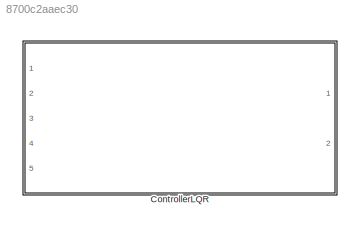
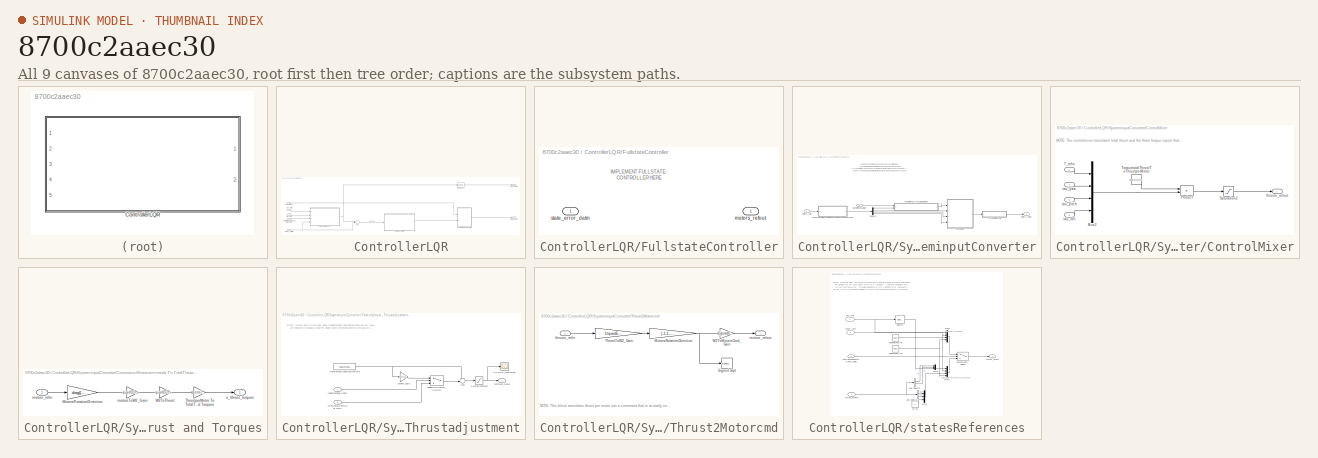
[diagram: thumbnail index - all 9 canvases of the model, root first then tree order]
MODEL slx_8700c2aaec30
KIND model
CONFIG AbsTol = auto
CONFIG FixedStep = sampleTime_qcsim
CONFIG InitFcn = % load parameters of the default quadrotor\ndisp('Quadrotor parameters loaded by InitFcn')\nparamsControl %load mdl_quadcopter as well!
CONFIG MaxStep = 0.1
CONFIG MinStep = auto
CONFIG RelTol = 1e-3
CONFIG SampleTimeConstraint = Unconstrained
CONFIG Solver = ode3
CONFIG SolverMode = Auto
CONFIG SolverName = ode3
CONFIG StartTime = 0
CONFIG StopTime = inf
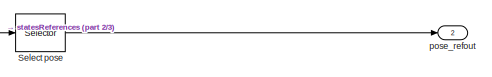
[diagram: ControllerLQR - part 1/3, top right region]
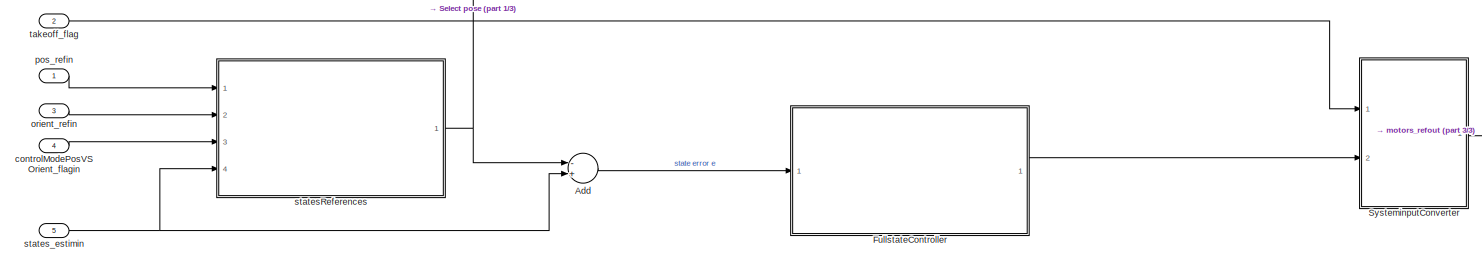
[diagram: ControllerLQR - part 2/3, full width, bottom band]
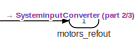
[diagram: ControllerLQR - part 3/3, bottom right region]
BLOCK [SubSystem] ControllerLQR
  Ports = [5, 2]
  RTWSystemCode = Reusable function
  RequestExecContextInheritance = off
  TreatAsAtomicUnit = on
BLOCK [Sum] ControllerLQR/Add
  InputSameDT = off
  Inputs = -+
  OutDataTypeStr = Inherit: Inherit via internal rule
  Ports = [2, 1]
  SaturateOnIntegerOverflow = off
BLOCK [SubSystem] ControllerLQR/FullstateController
  Ports = [1, 1]
  RequestExecContextInheritance = off
BLOCK [Outport] ControllerLQR/FullstateController/motors_refout
  IconDisplay = Port number
BLOCK [Inport] ControllerLQR/FullstateController/state_error_datin
  IconDisplay = Port number
BLOCK [Selector] ControllerLQR/Select pose
  Indices = [1:6]
  InputPortWidth = 12
  Ports = [1, 1]
BLOCK [SubSystem] ControllerLQR/SysteminputConverter
  Ports = [2, 1]
  RequestExecContextInheritance = off
BLOCK [SubSystem] ControllerLQR/SysteminputConverter/ControlMixer
  Ports = [4, 1]
  RequestExecContextInheritance = off
BLOCK [Mux] ControllerLQR/SysteminputConverter/ControlMixer/Mux2
  DisplayOption = bar
  Ports = [4, 1]
BLOCK [Product] ControllerLQR/SysteminputConverter/ControlMixer/Product
  InputSameDT = off
  Multiplication = Matrix(*)
  OutDataTypeStr = Inherit: Inherit via internal rule
  Ports = [2, 1]
  SaturateOnIntegerOverflow = off
BLOCK [Saturate] ControllerLQR/SysteminputConverter/ControlMixer/Saturation2
  InputPortMap = u0
  LowerLimit = -controlHelperParams.motorsThrustperMotor_max
  Ports = [1, 1]
  UpperLimit = -0.05*controlHelperParams.motorsThrustperMotor_max
BLOCK [Inport] ControllerLQR/SysteminputConverter/ControlMixer/T_refin
  IconDisplay = Port number
BLOCK [Constant] ControllerLQR/SysteminputConverter/ControlMixer/TorquetotalThrustToThrustperMotor
  Value = controlHelperParams.Q2Ts
BLOCK [Inport] ControllerLQR/SysteminputConverter/ControlMixer/tau_pitch
  IconDisplay = Port number
  Port = 3
BLOCK [Inport] ControllerLQR/SysteminputConverter/ControlMixer/tau_roll
  IconDisplay = Port number
  Port = 4
BLOCK [Inport] ControllerLQR/SysteminputConverter/ControlMixer/tau_yaw
  IconDisplay = Port number
  Port = 2
BLOCK [Outport] ControllerLQR/SysteminputConverter/ControlMixer/thrusts_refout
  IconDisplay = Port number
BLOCK [SubSystem] ControllerLQR/SysteminputConverter/Conversion Motorcommands To TotalThrust and Torques
  Ports = [1, 1]
  RequestExecContextInheritance = off
BLOCK [Gain] ControllerLQR/SysteminputConverter/Conversion Motorcommands To TotalThrust and Torques/MotorsRotationDirection
  Gain = diag([-1,1,-1,1])
  Multiplication = Matrix(K*u)
  OutDataTypeStr = Inherit: Inherit via internal rule
  ParamDataTypeStr = Inherit: Inherit via internal rule
  SaturateOnIntegerOverflow = off
BLOCK [Gain] ControllerLQR/SysteminputConverter/Conversion Motorcommands To TotalThrust and Torques/ThrustperMotor To TotalThrust and Torques
  Gain = controlHelperParams.Ts2Q
  Multiplication = Matrix(K*u)
  OutDataTypeStr = Inherit: Inherit via internal rule
  ParamDataTypeStr = Inherit: Inherit via internal rule
  SaturateOnIntegerOverflow = off
BLOCK [Gain] ControllerLQR/SysteminputConverter/Conversion Motorcommands To TotalThrust and Torques/W2ToThrust
  Gain = quadEDT.w2ToThrust_gain
  OutDataTypeStr = Inherit: Inherit via internal rule
  ParamDataTypeStr = Inherit: Inherit via internal rule
  SaturateOnIntegerOverflow = off
BLOCK [Gain] ControllerLQR/SysteminputConverter/Conversion Motorcommands To TotalThrust and Torques/motorsToW2_Gain
  Gain = quadEDT.motorcommandToW2_gain
  OutDataTypeStr = Inherit: Inherit via internal rule
  ParamDataTypeStr = Inherit: Inherit via internal rule
  SaturateOnIntegerOverflow = off
BLOCK [Inport] ControllerLQR/SysteminputConverter/Conversion Motorcommands To TotalThrust and Torques/motors_refin
  IconDisplay = Port number
BLOCK [Outport] ControllerLQR/SysteminputConverter/Conversion Motorcommands To TotalThrust and Torques/u_tthrust_torques
  IconDisplay = Port number
BLOCK [Demux] ControllerLQR/SysteminputConverter/Demux3
  DisplayOption = bar
  Ports = [1, 4]
BLOCK [SubSystem] ControllerLQR/SysteminputConverter/Takeoffphase_Thrustadjustment
  Ports = [2, 1]
  RequestExecContextInheritance = off
BLOCK [Sum] ControllerLQR/SysteminputConverter/Takeoffphase_Thrustadjustment/Add1
  IconShape = round
  InputSameDT = off
  Inputs = ++|
  OutDataTypeStr = Inherit: Inherit via internal rule
  Ports = [2, 1]
  SaturateOnIntegerOverflow = off
BLOCK [Constant] ControllerLQR/SysteminputConverter/Takeoffphase_Thrustadjustment/HoverThrustLinearizationPoint
  Value = -quad.g*quad.M
BLOCK [Scope] ControllerLQR/SysteminputConverter/Takeoffphase_Thrustadjustment/SCOPE_totalthrust 
  Floating = off
  NumInputPorts = 1
  Ports = [1]
  ZoomMode = yonly
BLOCK [Saturate] ControllerLQR/SysteminputConverter/Takeoffphase_Thrustadjustment/SaturationThrust
  InputPortMap = u0
  LowerLimit = -controlHelperParams.totalThrust_maxRelative*controlHelperParams.motorsThrustperMotor_max*4
  Ports = [1, 1]
  UpperLimit = controlHelperParams.totalThrust_maxRelative*controlHelperParams.motorsThrustperMotor_max*4
BLOCK [Switch] ControllerLQR/SysteminputConverter/Takeoffphase_Thrustadjustment/TakeoffOrControl_Switch
  Criteria = u2 > Threshold
  InputSameDT = off
  SaturateOnIntegerOverflow = off
BLOCK [Gain] ControllerLQR/SysteminputConverter/Takeoffphase_Thrustadjustment/takeoff_gain
  Gain = controlHelperParams.takeoff_gain
  OutDataTypeStr = Inherit: Inherit via internal rule
  ParamDataTypeStr = Inherit: Inherit via internal rule
  SaturateOnIntegerOverflow = off
BLOCK [Inport] ControllerLQR/SysteminputConverter/Takeoffphase_Thrustadjustment/takeoffphase_flagin
  IconDisplay = Port number
BLOCK [Outport] ControllerLQR/SysteminputConverter/Takeoffphase_Thrustadjustment/totThrust_refout
  IconDisplay = Port number
BLOCK [Inport] ControllerLQR/SysteminputConverter/Takeoffphase_Thrustadjustment/totThrustbyController_refin
  IconDisplay = Port number
  Port = 2
BLOCK [SubSystem] ControllerLQR/SysteminputConverter/Thrust2Motorcmd
  Ports = [1, 1]
  RequestExecContextInheritance = off
BLOCK [Gain] ControllerLQR/SysteminputConverter/Thrust2Motorcmd/MotorsRotationDirection
  Gain = [-1,1,-1,1]
  OutDataTypeStr = Inherit: Inherit via internal rule
  ParamDataTypeStr = Inherit: Inherit via internal rule
  SaturateOnIntegerOverflow = off
BLOCK [Sqrt] ControllerLQR/SysteminputConverter/Thrust2Motorcmd/Signed Sqrt
  Operator = signedSqrt
BLOCK [Gain] ControllerLQR/SysteminputConverter/Thrust2Motorcmd/ThrustToW2_Gain
  Gain = 1/quadEDT.w2ToThrust_gain
  OutDataTypeStr = Inherit: Inherit via internal rule
  ParamDataTypeStr = Inherit: Inherit via internal rule
  SaturateOnIntegerOverflow = off
BLOCK [Gain] ControllerLQR/SysteminputConverter/Thrust2Motorcmd/W2ToMotorsCmd_Gain
  Gain = 1/quadEDT.motorcommandToW2_gain
  OutDataTypeStr = Inherit: Inherit via internal rule
  ParamDataTypeStr = Inherit: Inherit via internal rule
  SaturateOnIntegerOverflow = off
BLOCK [Outport] ControllerLQR/SysteminputConverter/Thrust2Motorcmd/motors_refout
  IconDisplay = Port number
BLOCK [Inport] ControllerLQR/SysteminputConverter/Thrust2Motorcmd/thrusts_refin
  IconDisplay = Port number
BLOCK [Inport] ControllerLQR/SysteminputConverter/motors_refin
  IconDisplay = Port number
  Port = 2
BLOCK [Outport] ControllerLQR/SysteminputConverter/motors_refout
  IconDisplay = Port number
BLOCK [Inport] ControllerLQR/SysteminputConverter/takeoffphase_flagin
  IconDisplay = Port number
BLOCK [Inport] ControllerLQR/controlModePosVSOrient_flagin
  IconDisplay = Port number
  Port = 4
BLOCK [Outport] ControllerLQR/motors_refout
  IconDisplay = Port number
BLOCK [Inport] ControllerLQR/orient_refin
  IconDisplay = Port number
  Port = 3
BLOCK [Inport] ControllerLQR/pos_refin
  IconDisplay = Port number
BLOCK [Outport] ControllerLQR/pose_refout
  IconDisplay = Port number
  Port = 2
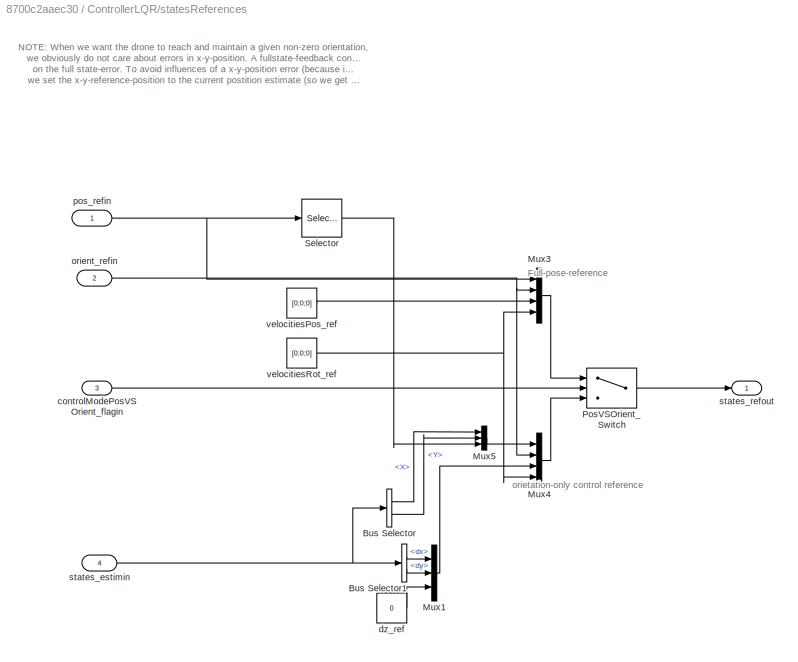
BLOCK [SubSystem] ControllerLQR/statesReferences
  Ports = [4, 1]
  RequestExecContextInheritance = off
BLOCK [BusSelector] ControllerLQR/statesReferences/Bus Selector
  OutputSignals = X,Y
  Ports = [1, 2]
BLOCK [BusSelector] ControllerLQR/statesReferences/Bus Selector1
  OutputSignals = dx,dy
  Ports = [1, 2]
BLOCK [Mux] ControllerLQR/statesReferences/Mux1
  DisplayOption = bar
  Inputs = 3
  Ports = [3, 1]
BLOCK [Mux] ControllerLQR/statesReferences/Mux3
  DisplayOption = bar
  Ports = [4, 1]
BLOCK [Mux] ControllerLQR/statesReferences/Mux4
  DisplayOption = bar
  Ports = [4, 1]
BLOCK [Mux] ControllerLQR/statesReferences/Mux5
  DisplayOption = bar
  Inputs = 3
  Ports = [3, 1]
BLOCK [Switch] ControllerLQR/statesReferences/PosVSOrient_Switch
  Criteria = u2 > Threshold
  InputSameDT = off
  SaturateOnIntegerOverflow = off
BLOCK [Selector] ControllerLQR/statesReferences/Selector
  Indices = [3]
  InputPortWidth = 3
  Ports = [1, 1]
BLOCK [Inport] ControllerLQR/statesReferences/controlModePosVSOrient_flagin
  IconDisplay = Port number
  Port = 3
BLOCK [Constant] ControllerLQR/statesReferences/dz_ref
  Value = 0
BLOCK [Inport] ControllerLQR/statesReferences/orient_refin
  IconDisplay = Port number
  Port = 2
BLOCK [Inport] ControllerLQR/statesReferences/pos_refin
  IconDisplay = Port number
BLOCK [Inport] ControllerLQR/statesReferences/states_estimin
  IconDisplay = Port number
  Port = 4
BLOCK [Outport] ControllerLQR/statesReferences/states_refout
  IconDisplay = Port number
BLOCK [Constant] ControllerLQR/statesReferences/velocitiesPos_ref
  Value = [0;0;0]
BLOCK [Constant] ControllerLQR/statesReferences/velocitiesRot_ref
  Value = [0;0;0]
BLOCK [Inport] ControllerLQR/states_estimin
  IconDisplay = Port number
  Port = 5
BLOCK [Inport] ControllerLQR/takeoff_flag
  IconDisplay = Port number
  Port = 2
ANNOTATION ControllerLQR/FullstateController: IMPLEMENT FULLSTATE- CONTROLLER HERE
ANNOTATION ControllerLQR/SysteminputConverter: NOTE: The Systeminputconverter takes care of two things: 1) During take off, adjust the total thrust proposed by the controller 2) Translate the "mechanical" system inputs (total thrust, torques around body-frame x-y-z-axes) to actual motor commands. This R4->R4 mapping is a simple bijective function and does not have any dynamics. This allows us to design the controller with more intuitive "mecha...<+90ch>
ANNOTATION ControllerLQR/SysteminputConverter/ControlMixer: NOTE: The controlmixer translates total thrust and the three torque inputs that the controller came up with into 'thrust per motor'.
ANNOTATION ControllerLQR/SysteminputConverter/Takeoffphase_Thrustadjustment: NOTE: Below 40cm in altitude, sonar measurements and camera data are very unreliable. We therefore introduce a take-off phase where the drone controls attitude only and runs an uncontrolled total thrust of takeofff_Gain/100 % above equilibrium thrust.
ANNOTATION ControllerLQR/SysteminputConverter/Thrust2Motorcmd: NOTE: This block translates thrust per motor into a command that is acutally send to the motors.
ANNOTATION ControllerLQR/statesReferences: NOTE: When we want the drone to reach and maintain a given non-zero orientation, we obviously do not care about errors in x-y-position . A fullstate-feedback controller, however, acts on the full state-error. To avoid influences of a x-y-position error (because in orientation-only-control we don't care about it), we set the x-y-reference-position to the current postition estimate (so we get a zero...<+23ch>
ANNOTATION ControllerLQR/statesReferences: Full-pose-reference
ANNOTATION ControllerLQR/statesReferences: orietation-only control reference
LINE ControllerLQR/Add:1 -> ControllerLQR/FullstateController:1
LINE ControllerLQR/FullstateController:1 -> ControllerLQR/SysteminputConverter:2
LINE ControllerLQR/Select pose:1 -> ControllerLQR/pose_refout:1
LINE ControllerLQR/SysteminputConverter/ControlMixer/Mux2:1 -> ControllerLQR/SysteminputConverter/ControlMixer/Product:2
LINE ControllerLQR/SysteminputConverter/ControlMixer/Product:1 -> ControllerLQR/SysteminputConverter/ControlMixer/Saturation2:1
LINE ControllerLQR/SysteminputConverter/ControlMixer/Saturation2:1 -> ControllerLQR/SysteminputConverter/ControlMixer/thrusts_refout:1
LINE ControllerLQR/SysteminputConverter/ControlMixer/T_refin:1 -> ControllerLQR/SysteminputConverter/ControlMixer/Mux2:1
LINE ControllerLQR/SysteminputConverter/ControlMixer/TorquetotalThrustToThrustperMotor:1 -> ControllerLQR/SysteminputConverter/ControlMixer/Product:1
LINE ControllerLQR/SysteminputConverter/ControlMixer/tau_pitch:1 -> ControllerLQR/SysteminputConverter/ControlMixer/Mux2:3
LINE ControllerLQR/SysteminputConverter/ControlMixer/tau_roll:1 -> ControllerLQR/SysteminputConverter/ControlMixer/Mux2:4
LINE ControllerLQR/SysteminputConverter/ControlMixer/tau_yaw:1 -> ControllerLQR/SysteminputConverter/ControlMixer/Mux2:2
LINE ControllerLQR/SysteminputConverter/ControlMixer:1 -> ControllerLQR/SysteminputConverter/Thrust2Motorcmd:1
LINE ControllerLQR/SysteminputConverter/Conversion Motorcommands To TotalThrust and Torques/MotorsRotationDirection:1 -> ControllerLQR/SysteminputConverter/Conversion Motorcommands To TotalThrust and Torques/motorsToW2_Gain:1
LINE ControllerLQR/SysteminputConverter/Conversion Motorcommands To TotalThrust and Torques/ThrustperMotor To TotalThrust and Torques:1 -> ControllerLQR/SysteminputConverter/Conversion Motorcommands To TotalThrust and Torques/u_tthrust_torques:1
LINE ControllerLQR/SysteminputConverter/Conversion Motorcommands To TotalThrust and Torques/W2ToThrust:1 -> ControllerLQR/SysteminputConverter/Conversion Motorcommands To TotalThrust and Torques/ThrustperMotor To TotalThrust and Torques:1
LINE ControllerLQR/SysteminputConverter/Conversion Motorcommands To TotalThrust and Torques/motorsToW2_Gain:1 -> ControllerLQR/SysteminputConverter/Conversion Motorcommands To TotalThrust and Torques/W2ToThrust:1
LINE ControllerLQR/SysteminputConverter/Conversion Motorcommands To TotalThrust and Torques/motors_refin:1 -> ControllerLQR/SysteminputConverter/Conversion Motorcommands To TotalThrust and Torques/MotorsRotationDirection:1
LINE ControllerLQR/SysteminputConverter/Conversion Motorcommands To TotalThrust and Torques:1 -> ControllerLQR/SysteminputConverter/Demux3:1
LINE ControllerLQR/SysteminputConverter/Demux3:1 -> ControllerLQR/SysteminputConverter/Takeoffphase_Thrustadjustment:2
LINE ControllerLQR/SysteminputConverter/Demux3:2 -> ControllerLQR/SysteminputConverter/ControlMixer:2
LINE ControllerLQR/SysteminputConverter/Demux3:3 -> ControllerLQR/SysteminputConverter/ControlMixer:3
LINE ControllerLQR/SysteminputConverter/Demux3:4 -> ControllerLQR/SysteminputConverter/ControlMixer:4
LINE ControllerLQR/SysteminputConverter/Takeoffphase_Thrustadjustment/Add1:1 -> ControllerLQR/SysteminputConverter/Takeoffphase_Thrustadjustment/SaturationThrust:1
NET ControllerLQR/SysteminputConverter/Takeoffphase_Thrustadjustment/HoverThrustLinearizationPoint:1 -> ControllerLQR/SysteminputConverter/Takeoffphase_Thrustadjustment/Add1:1, ControllerLQR/SysteminputConverter/Takeoffphase_Thrustadjustment/takeoff_gain:1
NET ControllerLQR/SysteminputConverter/Takeoffphase_Thrustadjustment/SaturationThrust:1 -> ControllerLQR/SysteminputConverter/Takeoffphase_Thrustadjustment/SCOPE_totalthrust :1, ControllerLQR/SysteminputConverter/Takeoffphase_Thrustadjustment/totThrust_refout:1
LINE ControllerLQR/SysteminputConverter/Takeoffphase_Thrustadjustment/TakeoffOrControl_Switch:1 -> ControllerLQR/SysteminputConverter/Takeoffphase_Thrustadjustment/Add1:2
LINE ControllerLQR/SysteminputConverter/Takeoffphase_Thrustadjustment/takeoff_gain:1 -> ControllerLQR/SysteminputConverter/Takeoffphase_Thrustadjustment/TakeoffOrControl_Switch:1
LINE ControllerLQR/SysteminputConverter/Takeoffphase_Thrustadjustment/takeoffphase_flagin:1 -> ControllerLQR/SysteminputConverter/Takeoffphase_Thrustadjustment/TakeoffOrControl_Switch:2
LINE ControllerLQR/SysteminputConverter/Takeoffphase_Thrustadjustment/totThrustbyController_refin:1 -> ControllerLQR/SysteminputConverter/Takeoffphase_Thrustadjustment/TakeoffOrControl_Switch:3
LINE ControllerLQR/SysteminputConverter/Takeoffphase_Thrustadjustment:1 -> ControllerLQR/SysteminputConverter/ControlMixer:1
NET ControllerLQR/SysteminputConverter/Thrust2Motorcmd/MotorsRotationDirection:1 -> ControllerLQR/SysteminputConverter/Thrust2Motorcmd/Signed Sqrt:1, ControllerLQR/SysteminputConverter/Thrust2Motorcmd/W2ToMotorsCmd_Gain:1
LINE ControllerLQR/SysteminputConverter/Thrust2Motorcmd/ThrustToW2_Gain:1 -> ControllerLQR/SysteminputConverter/Thrust2Motorcmd/MotorsRotationDirection:1
LINE ControllerLQR/SysteminputConverter/Thrust2Motorcmd/W2ToMotorsCmd_Gain:1 -> ControllerLQR/SysteminputConverter/Thrust2Motorcmd/motors_refout:1
LINE ControllerLQR/SysteminputConverter/Thrust2Motorcmd/thrusts_refin:1 -> ControllerLQR/SysteminputConverter/Thrust2Motorcmd/ThrustToW2_Gain:1
LINE ControllerLQR/SysteminputConverter/Thrust2Motorcmd:1 -> ControllerLQR/SysteminputConverter/motors_refout:1
LINE ControllerLQR/SysteminputConverter/motors_refin:1 -> ControllerLQR/SysteminputConverter/Conversion Motorcommands To TotalThrust and Torques:1
LINE ControllerLQR/SysteminputConverter/takeoffphase_flagin:1 -> ControllerLQR/SysteminputConverter/Takeoffphase_Thrustadjustment:1
LINE ControllerLQR/SysteminputConverter:1 -> ControllerLQR/motors_refout:1
LINE ControllerLQR/controlModePosVSOrient_flagin:1 -> ControllerLQR/statesReferences:3
LINE ControllerLQR/orient_refin:1 -> ControllerLQR/statesReferences:2
LINE ControllerLQR/pos_refin:1 -> ControllerLQR/statesReferences:1
LINE ControllerLQR/statesReferences/Bus Selector1:1 -> ControllerLQR/statesReferences/Mux1:1
LINE ControllerLQR/statesReferences/Bus Selector1:2 -> ControllerLQR/statesReferences/Mux1:2
LINE ControllerLQR/statesReferences/Bus Selector:1 -> ControllerLQR/statesReferences/Mux5:1
LINE ControllerLQR/statesReferences/Bus Selector:2 -> ControllerLQR/statesReferences/Mux5:2
LINE ControllerLQR/statesReferences/Mux1:1 -> ControllerLQR/statesReferences/Mux4:3
LINE ControllerLQR/statesReferences/Mux3:1 -> ControllerLQR/statesReferences/PosVSOrient_Switch:1
LINE ControllerLQR/statesReferences/Mux4:1 -> ControllerLQR/statesReferences/PosVSOrient_Switch:3
LINE ControllerLQR/statesReferences/Mux5:1 -> ControllerLQR/statesReferences/Mux4:1
LINE ControllerLQR/statesReferences/PosVSOrient_Switch:1 -> ControllerLQR/statesReferences/states_refout:1
LINE ControllerLQR/statesReferences/Selector:1 -> ControllerLQR/statesReferences/Mux5:3
LINE ControllerLQR/statesReferences/controlModePosVSOrient_flagin:1 -> ControllerLQR/statesReferences/PosVSOrient_Switch:2
LINE ControllerLQR/statesReferences/dz_ref:1 -> ControllerLQR/statesReferences/Mux1:3
NET ControllerLQR/statesReferences/orient_refin:1 -> ControllerLQR/statesReferences/Mux3:2, ControllerLQR/statesReferences/Mux4:2
NET ControllerLQR/statesReferences/pos_refin:1 -> ControllerLQR/statesReferences/Mux3:1, ControllerLQR/statesReferences/Selector:1
NET ControllerLQR/statesReferences/states_estimin:1 -> ControllerLQR/statesReferences/Bus Selector1:1, ControllerLQR/statesReferences/Bus Selector:1
LINE ControllerLQR/statesReferences/velocitiesPos_ref:1 -> ControllerLQR/statesReferences/Mux3:3
NET ControllerLQR/statesReferences/velocitiesRot_ref:1 -> ControllerLQR/statesReferences/Mux3:4, ControllerLQR/statesReferences/Mux4:4
NET ControllerLQR/statesReferences:1 -> ControllerLQR/Add:1, ControllerLQR/Select pose:1
NET ControllerLQR/states_estimin:1 -> ControllerLQR/Add:2, ControllerLQR/statesReferences:4
LINE ControllerLQR/takeoff_flag:1 -> ControllerLQR/SysteminputConverter:1
note: NET lines group one-source signal fan-out (src -> all destinations, sorted); 1:1 wires keep LINE
